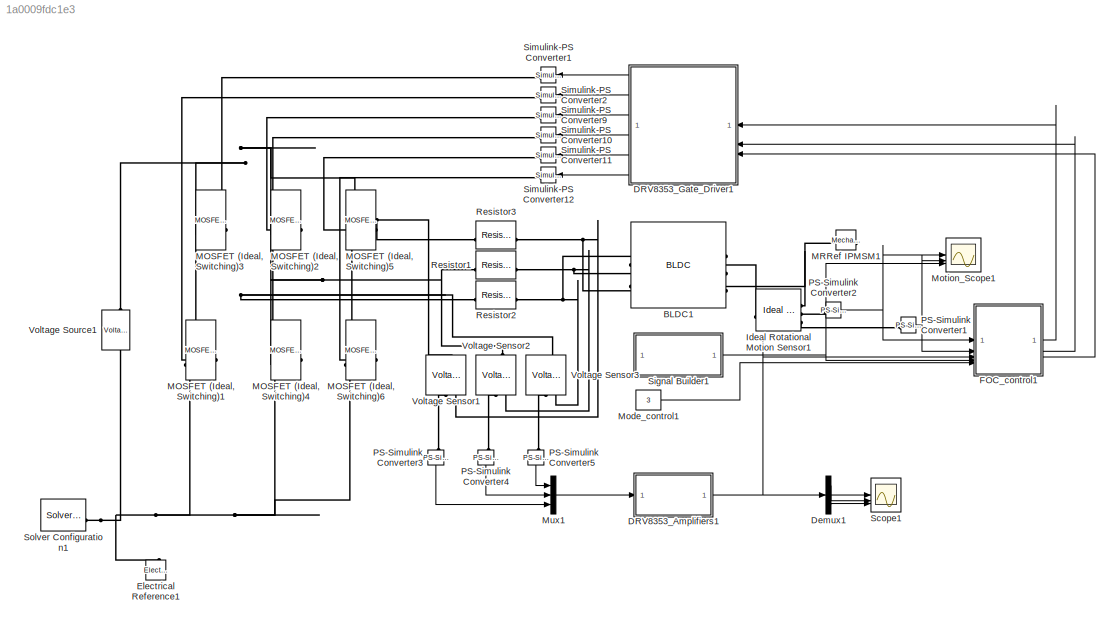
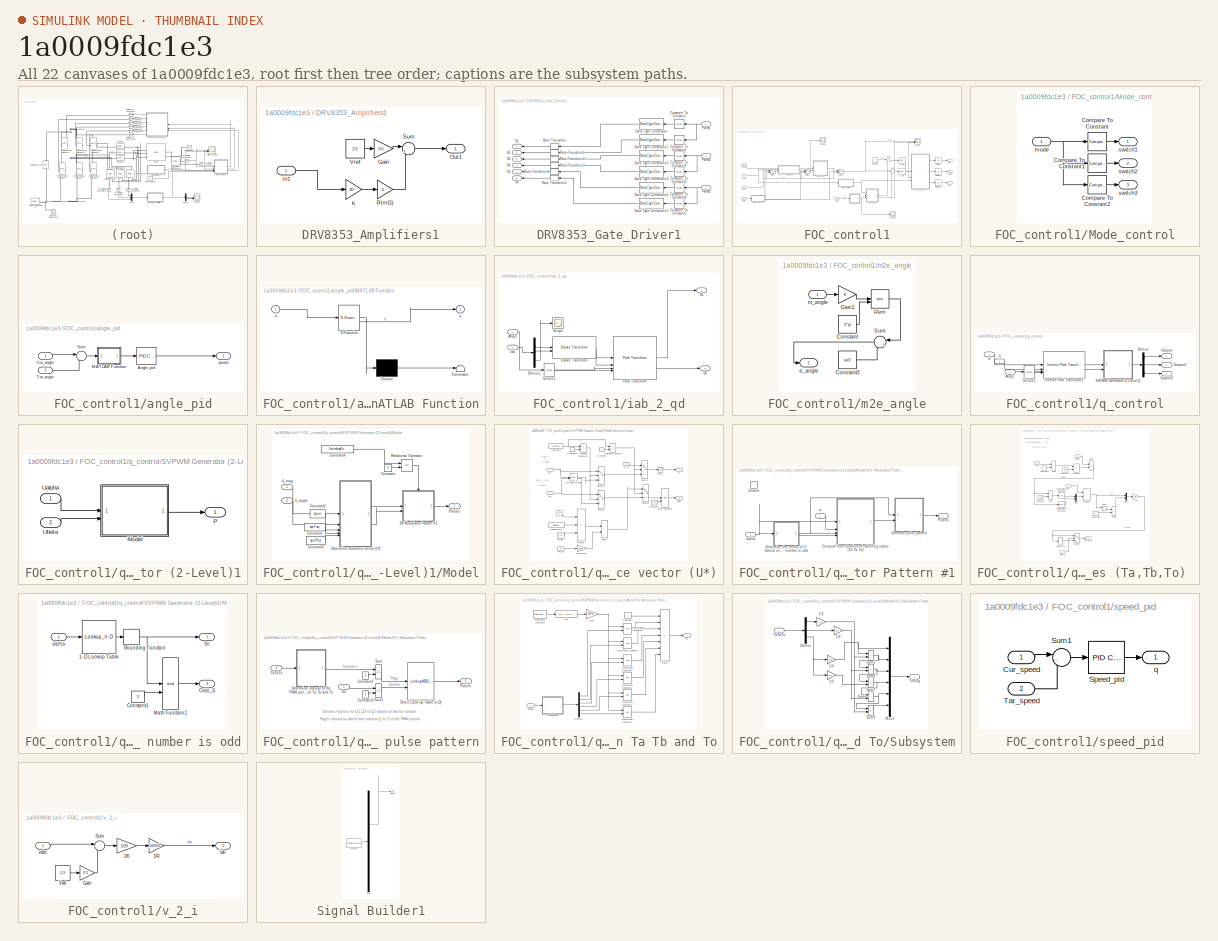
[diagram: thumbnail index - all 22 canvases of the model, root first then tree order]
MODEL slx_1a0009fdc1e3
KIND model
CONFIG AbsTol = auto
CONFIG EnableMultiTasking = off
CONFIG FixedStep = 0.0001
CONFIG MaxStep = auto
CONFIG MinStep = auto
CONFIG PreLoadFcn = ee_bldc_hysteresis_current_control_data;
CONFIG RelTol = 1e-3
CONFIG SampleTimeConstraint = Unconstrained
CONFIG SolverName = FixedStepAuto
CONFIG StartTime = 0.0
CONFIG StopFcn = ee_addSimlogTimeStamp(bdroot)
CONFIG StopTime = 10
BLOCK [Reference] BLDC1  REF=ee_lib/Electromechanical/Permanent Magnet/BLDC
  SourceBlock = ee_lib/Electromechanical/Permanent Magnet/BLDC
  SourceType = BLDC
BLOCK [SubSystem] DRV8353_Amplifiers1
BLOCK [Gain] DRV8353_Amplifiers1/Gain
  Gain = 0.5
BLOCK [Inport] DRV8353_Amplifiers1/In1
BLOCK [Gain] DRV8353_Amplifiers1/K
  Gain = 20
BLOCK [Outport] DRV8353_Amplifiers1/Out1
BLOCK [Gain] DRV8353_Amplifiers1/R(mΩ)
  Gain = 5
BLOCK [Sum] DRV8353_Amplifiers1/Sum
  Inputs = |+-
BLOCK [Constant] DRV8353_Amplifiers1/Vref
  Value = 2.5
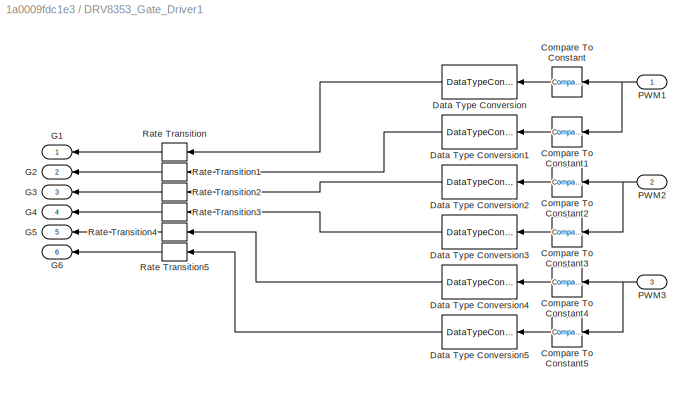
BLOCK [SubSystem] DRV8353_Gate_Driver1
BLOCK [Reference] DRV8353_Gate_Driver1/Compare To Constant  REF=simulink/Logic and Bit
Operations/Compare
To Constant
  SourceBlock = simulink/Logic and Bit\nOperations/Compare\nTo Constant
  SourceType = Compare To Constant
BLOCK [Reference] DRV8353_Gate_Driver1/Compare To Constant1  REF=simulink/Logic and Bit
Operations/Compare
To Constant
  SourceBlock = simulink/Logic and Bit\nOperations/Compare\nTo Constant
  SourceType = Compare To Constant
BLOCK [Reference] DRV8353_Gate_Driver1/Compare To Constant2  REF=simulink/Logic and Bit
Operations/Compare
To Constant
  SourceBlock = simulink/Logic and Bit\nOperations/Compare\nTo Constant
  SourceType = Compare To Constant
BLOCK [Reference] DRV8353_Gate_Driver1/Compare To Constant3  REF=simulink/Logic and Bit
Operations/Compare
To Constant
  SourceBlock = simulink/Logic and Bit\nOperations/Compare\nTo Constant
  SourceType = Compare To Constant
BLOCK [Reference] DRV8353_Gate_Driver1/Compare To Constant4  REF=simulink/Logic and Bit
Operations/Compare
To Constant
  SourceBlock = simulink/Logic and Bit\nOperations/Compare\nTo Constant
  SourceType = Compare To Constant
BLOCK [Reference] DRV8353_Gate_Driver1/Compare To Constant5  REF=simulink/Logic and Bit
Operations/Compare
To Constant
  SourceBlock = simulink/Logic and Bit\nOperations/Compare\nTo Constant
  SourceType = Compare To Constant
BLOCK [DataTypeConversion] DRV8353_Gate_Driver1/Data Type Conversion
  RndMeth = Floor
  SaturateOnIntegerOverflow = off
BLOCK [DataTypeConversion] DRV8353_Gate_Driver1/Data Type Conversion1
  RndMeth = Floor
  SaturateOnIntegerOverflow = off
BLOCK [DataTypeConversion] DRV8353_Gate_Driver1/Data Type Conversion2
  RndMeth = Floor
  SaturateOnIntegerOverflow = off
BLOCK [DataTypeConversion] DRV8353_Gate_Driver1/Data Type Conversion3
  RndMeth = Floor
  SaturateOnIntegerOverflow = off
BLOCK [DataTypeConversion] DRV8353_Gate_Driver1/Data Type Conversion4
  RndMeth = Floor
  SaturateOnIntegerOverflow = off
BLOCK [DataTypeConversion] DRV8353_Gate_Driver1/Data Type Conversion5
  RndMeth = Floor
  SaturateOnIntegerOverflow = off
BLOCK [Outport] DRV8353_Gate_Driver1/G1
BLOCK [Outport] DRV8353_Gate_Driver1/G2
  Port = 2
BLOCK [Outport] DRV8353_Gate_Driver1/G3
  Port = 3
BLOCK [Outport] DRV8353_Gate_Driver1/G4
  Port = 4
BLOCK [Outport] DRV8353_Gate_Driver1/G5
  Port = 5
BLOCK [Outport] DRV8353_Gate_Driver1/G6
  Port = 6
BLOCK [Inport] DRV8353_Gate_Driver1/PWM1
BLOCK [Inport] DRV8353_Gate_Driver1/PWM2
  Port = 2
BLOCK [Inport] DRV8353_Gate_Driver1/PWM3
  Port = 3
BLOCK [RateTransition] DRV8353_Gate_Driver1/Rate Transition
BLOCK [RateTransition] DRV8353_Gate_Driver1/Rate Transition1
BLOCK [RateTransition] DRV8353_Gate_Driver1/Rate Transition2
BLOCK [RateTransition] DRV8353_Gate_Driver1/Rate Transition3
BLOCK [RateTransition] DRV8353_Gate_Driver1/Rate Transition4
BLOCK [RateTransition] DRV8353_Gate_Driver1/Rate Transition5
BLOCK [Demux] Demux1
  Outputs = 3
BLOCK [Reference] Electrical Reference1  REF=fl_lib/Electrical/Electrical Elements/Electrical Reference
  NameLocation = right
  SourceBlock = fl_lib/Electrical/Electrical Elements/Electrical Reference
  SourceType = Electrical Reference
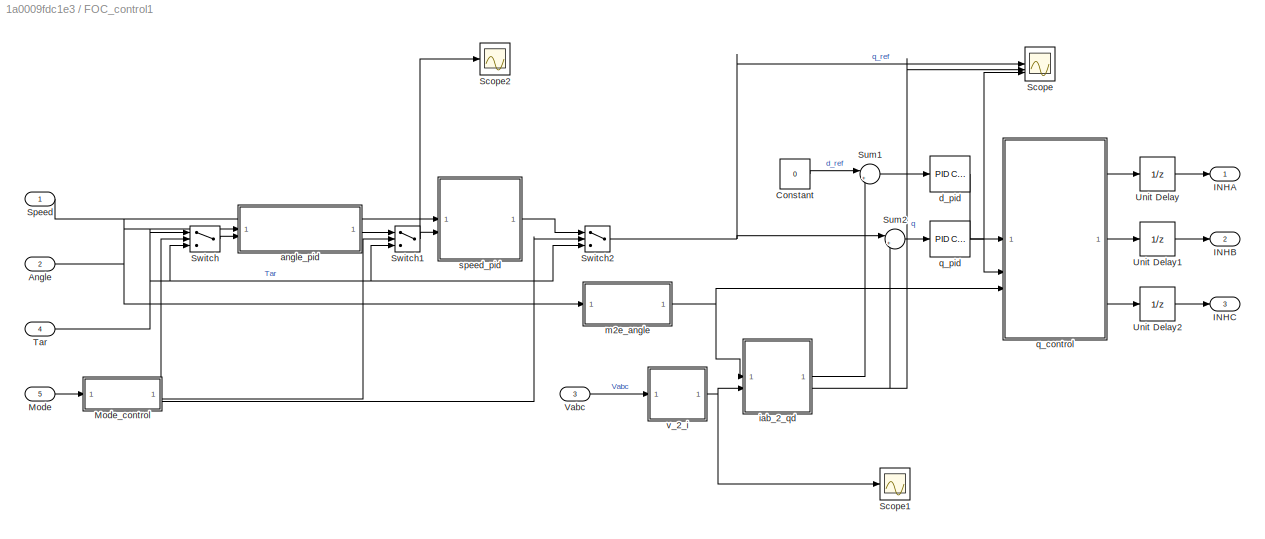
BLOCK [SubSystem] FOC_control1
BLOCK [Inport] FOC_control1/Angle
  Port = 2
BLOCK [Constant] FOC_control1/Constant
  Value = 0
BLOCK [Outport] FOC_control1/INHA
BLOCK [Outport] FOC_control1/INHB
  Port = 2
BLOCK [Outport] FOC_control1/INHC
  Port = 3
BLOCK [Inport] FOC_control1/Mode
  Port = 5
BLOCK [SubSystem] FOC_control1/Mode_control
BLOCK [Reference] FOC_control1/Mode_control/Compare To Constant  REF=simulink/Logic and Bit
Operations/Compare
To Constant
  SourceBlock = simulink/Logic and Bit\nOperations/Compare\nTo Constant
  SourceType = Compare To Constant
BLOCK [Reference] FOC_control1/Mode_control/Compare To Constant1  REF=simulink/Logic and Bit
Operations/Compare
To Constant
  SourceBlock = simulink/Logic and Bit\nOperations/Compare\nTo Constant
  SourceType = Compare To Constant
BLOCK [Reference] FOC_control1/Mode_control/Compare To Constant2  REF=simulink/Logic and Bit
Operations/Compare
To Constant
  SourceBlock = simulink/Logic and Bit\nOperations/Compare\nTo Constant
  SourceType = Compare To Constant
BLOCK [Inport] FOC_control1/Mode_control/mode
BLOCK [Outport] FOC_control1/Mode_control/switch1
BLOCK [Outport] FOC_control1/Mode_control/switch2
  Port = 2
BLOCK [Outport] FOC_control1/Mode_control/switch3
  Port = 3
BLOCK [Scope] FOC_control1/Scope
  Floating = off
  NumInputPorts = 3
  ScopeSpecificationString = Simulink.scopes.TimeScopeBlockCfg('CurrentConfiguration', extmgr.ConfigurationSet(extmgr.Configuration('Core','General UI',true),extmgr.Configuration('Core','Source UI',true),extmgr.Configuration('Sources','WiredSimulink',true,'DataLoggingVariableName','ScopeData6'),extmgr.Configuration('Visuals','Time Domain',true,'SerializedDisplays',{struct('MinYLimReal','-0.74375','MaxYLimReal','6.69375','YLab...<+2840ch>
BLOCK [Scope] FOC_control1/Scope1
  Floating = off
  NumInputPorts = 1
  ScopeSpecificationString = Simulink.scopes.TimeScopeBlockCfg('CurrentConfiguration', extmgr.ConfigurationSet(extmgr.Configuration('Core','General UI',true),extmgr.Configuration('Core','Source UI',true),extmgr.Configuration('Sources','WiredSimulink',true,'DataLoggingVariableName','ScopeData11'),extmgr.Configuration('Visuals','Time Domain',true,'SerializedDisplays',{struct('MinYLimReal','-4.30626','MaxYLimReal','4.37058','YLa...<+1460ch>
BLOCK [Scope] FOC_control1/Scope2
  Floating = off
  NumInputPorts = 1
  ScopeSpecificationString = Simulink.scopes.TimeScopeBlockCfg('CurrentConfiguration', extmgr.ConfigurationSet(extmgr.Configuration('Core','General UI',true),extmgr.Configuration('Core','Source UI',true),extmgr.Configuration('Sources','WiredSimulink',true),extmgr.Configuration('Visuals','Time Domain',true,'SerializedDisplays',{struct('MinYLimReal','-3.45289','MaxYLimReal','4.44116','YLabelReal','','MinYLimMag','0.00000','MaxY...<+1356ch>
BLOCK [Inport] FOC_control1/Speed
BLOCK [Sum] FOC_control1/Sum1
  Inputs = |+-
BLOCK [Sum] FOC_control1/Sum2
  Inputs = |+-
BLOCK [Switch] FOC_control1/Switch
  Criteria = u2 > Threshold
  InputSameDT = off
  SaturateOnIntegerOverflow = off
BLOCK [Switch] FOC_control1/Switch1
  Criteria = u2 > Threshold
  InputSameDT = off
  SaturateOnIntegerOverflow = off
BLOCK [Switch] FOC_control1/Switch2
  Criteria = u2 > Threshold
  InputSameDT = off
  SaturateOnIntegerOverflow = off
BLOCK [Inport] FOC_control1/Tar
  Port = 4
BLOCK [UnitDelay] FOC_control1/Unit Delay
  HasFrameUpgradeWarning = on
  SampleTime = -1
BLOCK [UnitDelay] FOC_control1/Unit Delay1
  HasFrameUpgradeWarning = on
  SampleTime = -1
BLOCK [UnitDelay] FOC_control1/Unit Delay2
  HasFrameUpgradeWarning = on
  SampleTime = -1
BLOCK [Inport] FOC_control1/Vabc
  Port = 3
BLOCK [SubSystem] FOC_control1/angle_pid
BLOCK [Reference] FOC_control1/angle_pid/Angle_pid  REF=slpidlib/PID Controller
  LibrarySourceBlock = simulink/Continuous/PID Controller
  SourceBlock = slpidlib/PID Controller
  SourceType = PID 1dof
BLOCK [Inport] FOC_control1/angle_pid/Cur_angle
BLOCK [SubSystem] FOC_control1/angle_pid/MATLAB Function
  ErrorFcn = Stateflow.Translate.translate
  LibrarySourceBlock = simulink/User-Defined\nFunctions/MATLAB Function
  PermitHierarchicalResolution = ExplicitOnly
  SFBlockType = MATLAB Function
  TreatAsAtomicUnit = on
BLOCK [Demux] FOC_control1/angle_pid/MATLAB Function/ Demux 
  Outputs = 1
BLOCK [S-Function] FOC_control1/angle_pid/MATLAB Function/ SFunction 
  EnableBusSupport = on
  FunctionName = sf_sfun
  PortCounts = [1 2]
  SFcnIsStateOwnerBlock = off
  SFunctionDeploymentMode = off
  Tag = Stateflow S-Function 1
BLOCK [Terminator] FOC_control1/angle_pid/MATLAB Function/ Terminator 
BLOCK [Inport] FOC_control1/angle_pid/MATLAB Function/u
BLOCK [Outport] FOC_control1/angle_pid/MATLAB Function/y
BLOCK [Sum] FOC_control1/angle_pid/Sum
  Inputs = |-+
BLOCK [Inport] FOC_control1/angle_pid/Tar_angle
  Port = 2
BLOCK [Outport] FOC_control1/angle_pid/speed
BLOCK [Reference] FOC_control1/d_pid  REF=slpidlib/PID Controller
  LibrarySourceBlock = simulink/Continuous/PID Controller
  SourceBlock = slpidlib/PID Controller
  SourceType = PID 1dof
BLOCK [SubSystem] FOC_control1/iab_2_qd
BLOCK [Inport] FOC_control1/iab_2_qd/Angle
BLOCK [Reference] FOC_control1/iab_2_qd/Clarke Transform  REF=mcbcontrolslib/Clarke Transform
  LibrarySourceBlock = mcbhdllib/Controls/Math Transforms/Clarke Transform
  SourceBlock = mcbcontrolslib/Clarke Transform
  SourceType = Clarke Transform
BLOCK [Demux] FOC_control1/iab_2_qd/Demux1
  Outputs = 3
BLOCK [Outport] FOC_control1/iab_2_qd/Ds
BLOCK [Reference] FOC_control1/iab_2_qd/Park Transform  REF=mcbcontrolslib/Park Transform
  LibrarySourceBlock = mcblib/Controls/Math Transforms/Park Transform
  SourceBlock = mcbcontrolslib/Park Transform
  SourceType = Park Transform
BLOCK [Outport] FOC_control1/iab_2_qd/Qs
  Port = 2
BLOCK [Scope] FOC_control1/iab_2_qd/Scope
  Floating = off
  NumInputPorts = 1
  ScopeSpecificationString = Simulink.scopes.TimeScopeBlockCfg('CurrentConfiguration', extmgr.ConfigurationSet(extmgr.Configuration('Core','General UI',true),extmgr.Configuration('Core','Source UI',true),extmgr.Configuration('Sources','WiredSimulink',true,'DataLoggingVariableName','ScopeData5'),extmgr.Configuration('Visuals','Time Domain',true),extmgr.Configuration('Tools','Plot Navigation',true),extmgr.Configuration('Tools',...<+40ch>
BLOCK [Trigonometry] FOC_control1/iab_2_qd/SinCos1
  Operator = sincos
BLOCK [Inport] FOC_control1/iab_2_qd/iab
  Port = 2
BLOCK [SubSystem] FOC_control1/m2e_angle
BLOCK [Constant] FOC_control1/m2e_angle/Constant
  Value = 2*pi
BLOCK [Constant] FOC_control1/m2e_angle/Constant3
  Value = -pi/2
BLOCK [Gain] FOC_control1/m2e_angle/Gain1
  Gain = 6
BLOCK [Math] FOC_control1/m2e_angle/Rem
  Operator = rem
BLOCK [Sum] FOC_control1/m2e_angle/Sum
  Inputs = |++
BLOCK [Outport] FOC_control1/m2e_angle/e_angle
BLOCK [Inport] FOC_control1/m2e_angle/m_angle
BLOCK [SubSystem] FOC_control1/q_control
BLOCK [Inport] FOC_control1/q_control/Angle
  Port = 3
BLOCK [Demux] FOC_control1/q_control/Demux
  Outputs = 3
BLOCK [Reference] FOC_control1/q_control/Inverse Park Transform1  REF=mcbcontrolslib/Inverse Park Transform
  LibrarySourceBlock = mcblib/Controls/Math Transforms/Inverse Park Transform
  SourceBlock = mcbcontrolslib/Inverse Park Transform
  SourceType = Inverse Park Transform
BLOCK [Outport] FOC_control1/q_control/Outport
BLOCK [Outport] FOC_control1/q_control/Outport1
  Port = 2
BLOCK [Outport] FOC_control1/q_control/Outport2
  Port = 3
BLOCK [SubSystem] FOC_control1/q_control/SVPWM Generator (2-Level)1
  AncestorBlock = sps_lib/Power Electronics/Power Electronics Control/SVPWM Generator\n(2-Level)
  CloseFcn = sps_rtmsupport('CloseFcn', gcbh);
  CopyFcn = sps_rtmsupport('CopyFcn', gcbh);
  DeleteFcn = sps_rtmsupport('DeleteFcn', gcbh);
  DialogController = POWERSYS.PowerSysDialog
  LibrarySourceBlock = sps_lib/Power Electronics/Power Electronics Control/SVPWM Generator\n(2-Level)
  LoadFcn = sps_rtmsupport('LoadFcn', gcbh);
  ModelCloseFcn = sps_rtmsupport('ModelCloseFcn', gcbh);
  NameChangeFcn = sps_rtmsupport('NameChangeFcn', gcbh);
  OpenFcn = sps_rtmsupport('OpenFcn', gcbh, [1  2]);
  PostSaveFcn = sps_rtmsupport('PostSaveFcn', gcbh);
  PreCopyFcn = sps_rtmsupport('PreCopyFcn', gcbh);
  PreDeleteFcn = sps_rtmsupport('PreDeleteFcn', gcbh);
  PreSaveFcn = sps_rtmsupport('PreSaveFcn', gcbh);
  StartFcn = sps_rtmsupport('StartFcn', gcbh);
  StopFcn = sps_rtmsupport('StopFcn', gcbh);
  UndoDeleteFcn = sps_rtmsupport('UndoDeleteFcn', gcbh);
BLOCK [SubSystem] FOC_control1/q_control/SVPWM Generator (2-Level)1/Model
  AncestorBlock = spsSVPWMGenerator2LevelModel/Continuous
  DialogController = POWERSYS.PowerSysDialog
  LibrarySourceBlock = spsSVPWMGenerator2LevelModel/Continuous
BLOCK [Constant] FOC_control1/q_control/SVPWM Generator (2-Level)1/Model/Constant
  SampleTime = Ts
BLOCK [Constant] FOC_control1/q_control/SVPWM Generator (2-Level)1/Model/Constant1
  NameLocation = top
  SampleTime = Ts
  Value = sps.Freq
BLOCK [Constant] FOC_control1/q_control/SVPWM Generator (2-Level)1/Model/Constant2
  NameLocation = top
  SampleTime = Ts
  Value = sps.m
BLOCK [Constant] FOC_control1/q_control/SVPWM Generator (2-Level)1/Model/Constant3
  NameLocation = top
  SampleTime = Ts
  Value = sps.Pha
BLOCK [Constant] FOC_control1/q_control/SVPWM Generator (2-Level)1/Model/Constant4
  SampleTime = Ts
  Value = SwitchingPattern
BLOCK [SubSystem] FOC_control1/q_control/SVPWM Generator (2-Level)1/Model/Determine reference vector (U*)
BLOCK [Saturate] FOC_control1/q_control/SVPWM Generator (2-Level)1/Model/Determine reference vector (U*)/0<m<1 
  LowerLimit = 0
  UpperLimit = 1
BLOCK [Reference] FOC_control1/q_control/SVPWM Generator (2-Level)1/Model/Determine reference vector (U*)/Cartesian to Polar  REF=simulink_extras/Transformations/Cartesian to
Polar
  SourceBlock = simulink_extras/Transformations/Cartesian to\nPolar
  SourceType = Cart2Polar
BLOCK [Constant] FOC_control1/q_control/SVPWM Generator (2-Level)1/Model/Determine reference vector (U*)/Constant
  SampleTime = Ts
  Value = 3
BLOCK [Constant] FOC_control1/q_control/SVPWM Generator (2-Level)1/Model/Determine reference vector (U*)/Constant1
  SampleTime = Ts
BLOCK [Constant] FOC_control1/q_control/SVPWM Generator (2-Level)1/Model/Determine reference vector (U*)/Constant2
  NameLocation = top
  SampleTime = Ts
  Value = 2*pi
BLOCK [Constant] FOC_control1/q_control/SVPWM Generator (2-Level)1/Model/Determine reference vector (U*)/Constant3
  SampleTime = Ts
  Value = InputType
BLOCK [Gain] FOC_control1/q_control/SVPWM Generator (2-Level)1/Model/Determine reference vector (U*)/Deg->Rad
  Gain = pi/180
  OutDataTypeStr = Inherit: Same as input
  ParamDataTypeStr = Inherit: Same as input
  SaturateOnIntegerOverflow = on
BLOCK [DigitalClock] FOC_control1/q_control/SVPWM Generator (2-Level)1/Model/Determine reference vector (U*)/Digital Clock
  SampleTime = Ts
BLOCK [Constant] FOC_control1/q_control/SVPWM Generator (2-Level)1/Model/Determine reference vector (U*)/Freq2
  SampleTime = Ts
  Value = 2*pi
BLOCK [Inport] FOC_control1/q_control/SVPWM Generator (2-Level)1/Model/Determine reference vector (U*)/Freq_Int
  Port = 4
BLOCK [Inport] FOC_control1/q_control/SVPWM Generator (2-Level)1/Model/Determine reference vector (U*)/In1
BLOCK [Inport] FOC_control1/q_control/SVPWM Generator (2-Level)1/Model/Determine reference vector (U*)/In2
  Port = 2
BLOCK [Math] FOC_control1/q_control/SVPWM Generator (2-Level)1/Model/Determine reference vector (U*)/Math Function2
  Operator = mod
  SignedPower = on
BLOCK [Inport] FOC_control1/q_control/SVPWM Generator (2-Level)1/Model/Determine reference vector (U*)/Pha_Init
  Port = 5
BLOCK [Product] FOC_control1/q_control/SVPWM Generator (2-Level)1/Model/Determine reference vector (U*)/Product
  InputSameDT = on
  Inputs = ***
  OutDataTypeStr = Inherit: Same as first input
  SaturateOnIntegerOverflow = on
BLOCK [RelationalOperator] FOC_control1/q_control/SVPWM Generator (2-Level)1/Model/Determine reference vector (U*)/Relational Operator
  InputSameDT = off
  Operator = ==
BLOCK [RelationalOperator] FOC_control1/q_control/SVPWM Generator (2-Level)1/Model/Determine reference vector (U*)/Relational Operator1
  InputSameDT = off
  Operator = ==
BLOCK [Sum] FOC_control1/q_control/SVPWM Generator (2-Level)1/Model/Determine reference vector (U*)/Sum1
  IconShape = rectangular
  InputSameDT = on
  OutDataTypeStr = Inherit: Same as first input
  SaturateOnIntegerOverflow = on
BLOCK [Switch] FOC_control1/q_control/SVPWM Generator (2-Level)1/Model/Determine reference vector (U*)/Switch
  InputSameDT = off
  Threshold = 0.5
BLOCK [Switch] FOC_control1/q_control/SVPWM Generator (2-Level)1/Model/Determine reference vector (U*)/Switch1
  InputSameDT = off
  Threshold = 0.5
BLOCK [Switch] FOC_control1/q_control/SVPWM Generator (2-Level)1/Model/Determine reference vector (U*)/Switch2
  InputSameDT = off
  Threshold = 0.5
BLOCK [Switch] FOC_control1/q_control/SVPWM Generator (2-Level)1/Model/Determine reference vector (U*)/Switch3
  InputSameDT = off
  Threshold = 0.5
BLOCK [Outport] FOC_control1/q_control/SVPWM Generator (2-Level)1/Model/Determine reference vector (U*)/alpha
  Port = 2
BLOCK [Outport] FOC_control1/q_control/SVPWM Generator (2-Level)1/Model/Determine reference vector (U*)/m
BLOCK [Inport] FOC_control1/q_control/SVPWM Generator (2-Level)1/Model/Determine reference vector (U*)/m_Int
  Port = 3
BLOCK [Outport] FOC_control1/q_control/SVPWM Generator (2-Level)1/Model/Pulses
BLOCK [RelationalOperator] FOC_control1/q_control/SVPWM Generator (2-Level)1/Model/Relational Operator
  InputSameDT = off
  Operator = ==
BLOCK [SubSystem] FOC_control1/q_control/SVPWM Generator (2-Level)1/Model/SV Modulator Pattern #1
BLOCK [SubSystem] FOC_control1/q_control/SVPWM Generator (2-Level)1/Model/SV Modulator Pattern #1/Compute time duration of switching states (Ta,Tb,To) 
BLOCK [Gain] FOC_control1/q_control/SVPWM Generator (2-Level)1/Model/SV Modulator Pattern #1/Compute time duration of switching states (Ta,Tb,To) /1//Fc
  Gain = 1/Fc
  OutDataTypeStr = Inherit: Same as input
  ParamDataTypeStr = Inherit: Same as input
  SaturateOnIntegerOverflow = on
BLOCK [Constant] FOC_control1/q_control/SVPWM Generator (2-Level)1/Model/SV Modulator Pattern #1/Compute time duration of switching states (Ta,Tb,To) /Constant
  SampleTime = Ts
  Value = pi/6
BLOCK [Constant] FOC_control1/q_control/SVPWM Generator (2-Level)1/Model/SV Modulator Pattern #1/Compute time duration of switching states (Ta,Tb,To) /Constant1
  SampleTime = Ts
  Value = pi/3
BLOCK [Constant] FOC_control1/q_control/SVPWM Generator (2-Level)1/Model/SV Modulator Pattern #1/Compute time duration of switching states (Ta,Tb,To) /Constant2
  SampleTime = Ts
BLOCK [Constant] FOC_control1/q_control/SVPWM Generator (2-Level)1/Model/SV Modulator Pattern #1/Compute time duration of switching states (Ta,Tb,To) /Constant8
  SampleTime = Ts
BLOCK [Mux] FOC_control1/q_control/SVPWM Generator (2-Level)1/Model/SV Modulator Pattern #1/Compute time duration of switching states (Ta,Tb,To) /Mux
  DisplayOption = bar
  Inputs = 2
BLOCK [Mux] FOC_control1/q_control/SVPWM Generator (2-Level)1/Model/SV Modulator Pattern #1/Compute time duration of switching states (Ta,Tb,To) /Mux1
  DisplayOption = bar
  Inputs = 2
BLOCK [Inport] FOC_control1/q_control/SVPWM Generator (2-Level)1/Model/SV Modulator Pattern #1/Compute time duration of switching states (Ta,Tb,To) /Odd_S
  Port = 4
BLOCK [Product] FOC_control1/q_control/SVPWM Generator (2-Level)1/Model/SV Modulator Pattern #1/Compute time duration of switching states (Ta,Tb,To) /Product
  OutDataTypeStr = Inherit: Same as first input
  SaturateOnIntegerOverflow = on
BLOCK [Product] FOC_control1/q_control/SVPWM Generator (2-Level)1/Model/SV Modulator Pattern #1/Compute time duration of switching states (Ta,Tb,To) /Product1
  OutDataTypeStr = Inherit: Same as first input
  SaturateOnIntegerOverflow = on
BLOCK [Selector] FOC_control1/q_control/SVPWM Generator (2-Level)1/Model/SV Modulator Pattern #1/Compute time duration of switching states (Ta,Tb,To) /Selector1
  IndexOptions = Index vector (dialog)
  Indices = [2 1 3]
  InputPortWidth = 3
  OutputSizes = 1
BLOCK [Inport] FOC_control1/q_control/SVPWM Generator (2-Level)1/Model/SV Modulator Pattern #1/Compute time duration of switching states (Ta,Tb,To) /Sn
  Port = 3
BLOCK [Sum] FOC_control1/q_control/SVPWM Generator (2-Level)1/Model/SV Modulator Pattern #1/Compute time duration of switching states (Ta,Tb,To) /Sum
  IconShape = rectangular
  SaturateOnIntegerOverflow = on
BLOCK [Sum] FOC_control1/q_control/SVPWM Generator (2-Level)1/Model/SV Modulator Pattern #1/Compute time duration of switching states (Ta,Tb,To) /Sum1
  IconShape = rectangular
  Inputs = +-
  SaturateOnIntegerOverflow = on
BLOCK [Sum] FOC_control1/q_control/SVPWM Generator (2-Level)1/Model/SV Modulator Pattern #1/Compute time duration of switching states (Ta,Tb,To) /Sum2
  IconShape = rectangular
  Inputs = 1
  SaturateOnIntegerOverflow = on
BLOCK [Sum] FOC_control1/q_control/SVPWM Generator (2-Level)1/Model/SV Modulator Pattern #1/Compute time duration of switching states (Ta,Tb,To) /Sum3
  IconShape = rectangular
  Inputs = -+
  SaturateOnIntegerOverflow = on
BLOCK [Sum] FOC_control1/q_control/SVPWM Generator (2-Level)1/Model/SV Modulator Pattern #1/Compute time duration of switching states (Ta,Tb,To) /Sum4
  IconShape = rectangular
  Inputs = +-
  SaturateOnIntegerOverflow = on
BLOCK [Switch] FOC_control1/q_control/SVPWM Generator (2-Level)1/Model/SV Modulator Pattern #1/Compute time duration of switching states (Ta,Tb,To) /Switch1
  InputSameDT = off
  Threshold = 0.5
BLOCK [Outport] FOC_control1/q_control/SVPWM Generator (2-Level)1/Model/SV Modulator Pattern #1/Compute time duration of switching states (Ta,Tb,To) /Ta_Tb_To
BLOCK [Trigonometry] FOC_control1/q_control/SVPWM Generator (2-Level)1/Model/SV Modulator Pattern #1/Compute time duration of switching states (Ta,Tb,To) /Trigonometric Function
BLOCK [Trigonometry] FOC_control1/q_control/SVPWM Generator (2-Level)1/Model/SV Modulator Pattern #1/Compute time duration of switching states (Ta,Tb,To) /Trigonometric Function1
  Operator = cos
BLOCK [Inport] FOC_control1/q_control/SVPWM Generator (2-Level)1/Model/SV Modulator Pattern #1/Compute time duration of switching states (Ta,Tb,To) /alpha
BLOCK [Inport] FOC_control1/q_control/SVPWM Generator (2-Level)1/Model/SV Modulator Pattern #1/Compute time duration of switching states (Ta,Tb,To) /m
  Port = 2
BLOCK [SubSystem] FOC_control1/q_control/SVPWM Generator (2-Level)1/Model/SV Modulator Pattern #1/Determine the sector of U* based on alpha (rad). Also, determine if the sector number is odd
BLOCK [Lookup_n-D] FOC_control1/q_control/SVPWM Generator (2-Level)1/Model/SV Modulator Pattern #1/Determine the sector of U* based on alpha (rad). Also, determine if the sector number is odd/1-D Lookup Table
  BeginIndexSearchUsingPreviousIndexResult = on
  BreakpointsForDimension1 = [0:pi/3:5*pi/3]
  InputPortMap = u0
  InternalRulePriority = Speed
  NumberOfTableDimensions = 1
  RndMeth = Simplest
  Table = [1:6]
BLOCK [Constant] FOC_control1/q_control/SVPWM Generator (2-Level)1/Model/SV Modulator Pattern #1/Determine the sector of U* based on alpha (rad). Also, determine if the sector number is odd/Constant1
  SampleTime = Ts
  Value = 2
BLOCK [Math] FOC_control1/q_control/SVPWM Generator (2-Level)1/Model/SV Modulator Pattern #1/Determine the sector of U* based on alpha (rad). Also, determine if the sector number is odd/Math Function1
  Operator = mod
  SignedPower = on
BLOCK [Outport] FOC_control1/q_control/SVPWM Generator (2-Level)1/Model/SV Modulator Pattern #1/Determine the sector of U* based on alpha (rad). Also, determine if the sector number is odd/Odd_S
  Port = 2
BLOCK [Rounding] FOC_control1/q_control/SVPWM Generator (2-Level)1/Model/SV Modulator Pattern #1/Determine the sector of U* based on alpha (rad). Also, determine if the sector number is odd/Rounding Function
BLOCK [Outport] FOC_control1/q_control/SVPWM Generator (2-Level)1/Model/SV Modulator Pattern #1/Determine the sector of U* based on alpha (rad). Also, determine if the sector number is odd/Sn
BLOCK [Inport] FOC_control1/q_control/SVPWM Generator (2-Level)1/Model/SV Modulator Pattern #1/Determine the sector of U* based on alpha (rad). Also, determine if the sector number is odd/alpha
BLOCK [EnablePort] FOC_control1/q_control/SVPWM Generator (2-Level)1/Model/SV Modulator Pattern #1/Enable
  PropagateVarSize = During execution
BLOCK [SubSystem] FOC_control1/q_control/SVPWM Generator (2-Level)1/Model/SV Modulator Pattern #1/Generate pulse pattern
BLOCK [Constant] FOC_control1/q_control/SVPWM Generator (2-Level)1/Model/SV Modulator Pattern #1/Generate pulse pattern/Constant2
  SampleTime = Ts
BLOCK [Constant] FOC_control1/q_control/SVPWM Generator (2-Level)1/Model/SV Modulator Pattern #1/Generate pulse pattern/Constant3
  SampleTime = Ts
BLOCK [SubSystem] FOC_control1/q_control/SVPWM Generator (2-Level)1/Model/SV Modulator Pattern #1/Generate pulse pattern/Determine interval of the PWM period based on Ta Tb and To
BLOCK [Constant] FOC_control1/q_control/SVPWM Generator (2-Level)1/Model/SV Modulator Pattern #1/Generate pulse pattern/Determine interval of the PWM period based on Ta Tb and To/Constant7
  SampleTime = Ts
BLOCK [Demux] FOC_control1/q_control/SVPWM Generator (2-Level)1/Model/SV Modulator Pattern #1/Generate pulse pattern/Determine interval of the PWM period based on Ta Tb and To/Demux1
  DisplayOption = none
  Outputs = 6
BLOCK [Fcn] FOC_control1/q_control/SVPWM Generator (2-Level)1/Model/SV Modulator Pattern #1/Generate pulse pattern/Determine interval of the PWM period based on Ta Tb and To/Fcn
  Expr = 0.5 * ( u(1)+1 )
BLOCK [Gain] FOC_control1/q_control/SVPWM Generator (2-Level)1/Model/SV Modulator Pattern #1/Generate pulse pattern/Determine interval of the PWM period based on Ta Tb and To/Gain
  Gain = 1/Fc
BLOCK [RelationalOperator] FOC_control1/q_control/SVPWM Generator (2-Level)1/Model/SV Modulator Pattern #1/Generate pulse pattern/Determine interval of the PWM period based on Ta Tb and To/Relational Operator
  InputSameDT = off
BLOCK [RelationalOperator] FOC_control1/q_control/SVPWM Generator (2-Level)1/Model/SV Modulator Pattern #1/Generate pulse pattern/Determine interval of the PWM period based on Ta Tb and To/Relational Operator1
  InputSameDT = off
BLOCK [RelationalOperator] FOC_control1/q_control/SVPWM Generator (2-Level)1/Model/SV Modulator Pattern #1/Generate pulse pattern/Determine interval of the PWM period based on Ta Tb and To/Relational Operator2
  InputSameDT = off
BLOCK [RelationalOperator] FOC_control1/q_control/SVPWM Generator (2-Level)1/Model/SV Modulator Pattern #1/Generate pulse pattern/Determine interval of the PWM period based on Ta Tb and To/Relational Operator3
  InputSameDT = off
BLOCK [RelationalOperator] FOC_control1/q_control/SVPWM Generator (2-Level)1/Model/SV Modulator Pattern #1/Generate pulse pattern/Determine interval of the PWM period based on Ta Tb and To/Relational Operator4
  InputSameDT = off
BLOCK [RelationalOperator] FOC_control1/q_control/SVPWM Generator (2-Level)1/Model/SV Modulator Pattern #1/Generate pulse pattern/Determine interval of the PWM period based on Ta Tb and To/Relational Operator5
  InputSameDT = off
BLOCK [Reference] FOC_control1/q_control/SVPWM Generator (2-Level)1/Model/SV Modulator Pattern #1/Generate pulse pattern/Determine interval of the PWM period based on Ta Tb and To/Sawtooth Generator  REF=spsSawtoothGeneratorLib/Sawtooth
Generator
  LibrarySourceBlock = sps_lib/Sources/Signal Generator Sources/Sawtooth\nGenerator
  SourceBlock = spsSawtoothGeneratorLib/Sawtooth\nGenerator
  SourceType = Sawtooth Generator
BLOCK [SubSystem] FOC_control1/q_control/SVPWM Generator (2-Level)1/Model/SV Modulator Pattern #1/Generate pulse pattern/Determine interval of the PWM period based on Ta Tb and To/Subsystem
BLOCK [Gain] FOC_control1/q_control/SVPWM Generator (2-Level)1/Model/SV Modulator Pattern #1/Generate pulse pattern/Determine interval of the PWM period based on Ta Tb and To/Subsystem/  1//2
  Gain = 0.5
  OutDataTypeStr = Inherit: Same as input
  ParamDataTypeStr = Inherit: Same as input
  SaturateOnIntegerOverflow = on
BLOCK [Gain] FOC_control1/q_control/SVPWM Generator (2-Level)1/Model/SV Modulator Pattern #1/Generate pulse pattern/Determine interval of the PWM period based on Ta Tb and To/Subsystem/ 1//2
  Gain = 0.5
  OutDataTypeStr = Inherit: Same as input
  ParamDataTypeStr = Inherit: Same as input
  SaturateOnIntegerOverflow = on
BLOCK [Gain] FOC_control1/q_control/SVPWM Generator (2-Level)1/Model/SV Modulator Pattern #1/Generate pulse pattern/Determine interval of the PWM period based on Ta Tb and To/Subsystem/ 1//2 
  Gain = 0.5
  NameLocation = top
  OutDataTypeStr = Inherit: Same as input
  ParamDataTypeStr = Inherit: Same as input
  SaturateOnIntegerOverflow = on
BLOCK [Gain] FOC_control1/q_control/SVPWM Generator (2-Level)1/Model/SV Modulator Pattern #1/Generate pulse pattern/Determine interval of the PWM period based on Ta Tb and To/Subsystem/1//4
  Gain = 0.25
  OutDataTypeStr = Inherit: Same as input
  ParamDataTypeStr = Inherit: Same as input
  SaturateOnIntegerOverflow = on
BLOCK [Demux] FOC_control1/q_control/SVPWM Generator (2-Level)1/Model/SV Modulator Pattern #1/Generate pulse pattern/Determine interval of the PWM period based on Ta Tb and To/Subsystem/Demux
  DisplayOption = none
  Outputs = 3
BLOCK [Mux] FOC_control1/q_control/SVPWM Generator (2-Level)1/Model/SV Modulator Pattern #1/Generate pulse pattern/Determine interval of the PWM period based on Ta Tb and To/Subsystem/Mux1
  DisplayOption = bar
  Inputs = 6
BLOCK [Sum] FOC_control1/q_control/SVPWM Generator (2-Level)1/Model/SV Modulator Pattern #1/Generate pulse pattern/Determine interval of the PWM period based on Ta Tb and To/Subsystem/Sum5
  IconShape = rectangular
  SaturateOnIntegerOverflow = on
BLOCK [Sum] FOC_control1/q_control/SVPWM Generator (2-Level)1/Model/SV Modulator Pattern #1/Generate pulse pattern/Determine interval of the PWM period based on Ta Tb and To/Subsystem/Sum6
  IconShape = rectangular
  SaturateOnIntegerOverflow = on
BLOCK [Sum] FOC_control1/q_control/SVPWM Generator (2-Level)1/Model/SV Modulator Pattern #1/Generate pulse pattern/Determine interval of the PWM period based on Ta Tb and To/Subsystem/Sum7
  IconShape = rectangular
  SaturateOnIntegerOverflow = on
BLOCK [Sum] FOC_control1/q_control/SVPWM Generator (2-Level)1/Model/SV Modulator Pattern #1/Generate pulse pattern/Determine interval of the PWM period based on Ta Tb and To/Subsystem/Sum8
  IconShape = rectangular
  SaturateOnIntegerOverflow = on
BLOCK [Sum] FOC_control1/q_control/SVPWM Generator (2-Level)1/Model/SV Modulator Pattern #1/Generate pulse pattern/Determine interval of the PWM period based on Ta Tb and To/Subsystem/Sum9
  IconShape = rectangular
  SaturateOnIntegerOverflow = on
BLOCK [Inport] FOC_control1/q_control/SVPWM Generator (2-Level)1/Model/SV Modulator Pattern #1/Generate pulse pattern/Determine interval of the PWM period based on Ta Tb and To/Subsystem/TaTbTo
BLOCK [Outport] FOC_control1/q_control/SVPWM Generator (2-Level)1/Model/SV Modulator Pattern #1/Generate pulse pattern/Determine interval of the PWM period based on Ta Tb and To/Subsystem/Timing
BLOCK [Sum] FOC_control1/q_control/SVPWM Generator (2-Level)1/Model/SV Modulator Pattern #1/Generate pulse pattern/Determine interval of the PWM period based on Ta Tb and To/Sum1
  IconShape = rectangular
  Inputs = +++++++
  SaturateOnIntegerOverflow = on
BLOCK [Inport] FOC_control1/q_control/SVPWM Generator (2-Level)1/Model/SV Modulator Pattern #1/Generate pulse pattern/Determine interval of the PWM period based on Ta Tb and To/TaTbTo
BLOCK [Outport] FOC_control1/q_control/SVPWM Generator (2-Level)1/Model/SV Modulator Pattern #1/Generate pulse pattern/Determine interval of the PWM period based on Ta Tb and To/Tn
BLOCK [LookupNDDirect] FOC_control1/q_control/SVPWM Generator (2-Level)1/Model/SV Modulator Pattern #1/Generate pulse pattern/Direct Look-Up Table (n-D)
  InputsSelectThisObjectFromTable = Vector
  NumberOfTableDimensions = 3
  Table = pat1
BLOCK [Outport] FOC_control1/q_control/SVPWM Generator (2-Level)1/Model/SV Modulator Pattern #1/Generate pulse pattern/Pulses
BLOCK [Inport] FOC_control1/q_control/SVPWM Generator (2-Level)1/Model/SV Modulator Pattern #1/Generate pulse pattern/Sn
BLOCK [Sum] FOC_control1/q_control/SVPWM Generator (2-Level)1/Model/SV Modulator Pattern #1/Generate pulse pattern/Sum
  IconShape = rectangular
  Inputs = +-
  SaturateOnIntegerOverflow = on
BLOCK [Sum] FOC_control1/q_control/SVPWM Generator (2-Level)1/Model/SV Modulator Pattern #1/Generate pulse pattern/Sum1
  IconShape = rectangular
  Inputs = +-
  SaturateOnIntegerOverflow = on
BLOCK [Inport] FOC_control1/q_control/SVPWM Generator (2-Level)1/Model/SV Modulator Pattern #1/Generate pulse pattern/TaTbTo
  Port = 2
BLOCK [Outport] FOC_control1/q_control/SVPWM Generator (2-Level)1/Model/SV Modulator Pattern #1/Pulses
BLOCK [Inport] FOC_control1/q_control/SVPWM Generator (2-Level)1/Model/SV Modulator Pattern #1/alpha
  Port = 2
BLOCK [Inport] FOC_control1/q_control/SVPWM Generator (2-Level)1/Model/SV Modulator Pattern #1/m
BLOCK [Inport] FOC_control1/q_control/SVPWM Generator (2-Level)1/Model/U_angle
  Port = 2
BLOCK [Inport] FOC_control1/q_control/SVPWM Generator (2-Level)1/Model/U_mag
BLOCK [Outport] FOC_control1/q_control/SVPWM Generator (2-Level)1/P
  SampleTime = Ts
  VectorParamsAs1DForOutWhenUnconnected = off
BLOCK [Inport] FOC_control1/q_control/SVPWM Generator (2-Level)1/Ualpha
  SampleTime = Ts
BLOCK [Inport] FOC_control1/q_control/SVPWM Generator (2-Level)1/Ubeta
  Port = 2
  SampleTime = Ts
BLOCK [Trigonometry] FOC_control1/q_control/SinCos1
  Operator = sincos
BLOCK [Inport] FOC_control1/q_control/d
BLOCK [Inport] FOC_control1/q_control/q
  Port = 2
BLOCK [Reference] FOC_control1/q_pid  REF=slpidlib/PID Controller
  LibrarySourceBlock = simulink/Continuous/PID Controller
  SourceBlock = slpidlib/PID Controller
  SourceType = PID 1dof
BLOCK [SubSystem] FOC_control1/speed_pid
BLOCK [Inport] FOC_control1/speed_pid/Cur_speed
BLOCK [Reference] FOC_control1/speed_pid/Speed_pid  REF=slpidlib/PID Controller
  LibrarySourceBlock = simulink/Continuous/PID Controller
  SourceBlock = slpidlib/PID Controller
  SourceType = PID 1dof
BLOCK [Sum] FOC_control1/speed_pid/Sum1
  Inputs = |-+
BLOCK [Inport] FOC_control1/speed_pid/Tar_speed
  Port = 2
BLOCK [Outport] FOC_control1/speed_pid/q
BLOCK [SubSystem] FOC_control1/v_2_i
BLOCK [Gain] FOC_control1/v_2_i/1//K
  Gain = 1/20
BLOCK [Gain] FOC_control1/v_2_i/1//R
  Gain = 1000/5
BLOCK [Gain] FOC_control1/v_2_i/Gain
  Gain = 0.5
BLOCK [Sum] FOC_control1/v_2_i/Sum
  Inputs = |-+
BLOCK [Constant] FOC_control1/v_2_i/Vref
  Value = 2.5
BLOCK [Outport] FOC_control1/v_2_i/iab
BLOCK [Inport] FOC_control1/v_2_i/vabc
BLOCK [Reference] Ideal Rotational Motion Sensor1  REF=fl_lib/Mechanical/Mechanical Sensors/Ideal Rotational
Motion Sensor
  SourceBlock = fl_lib/Mechanical/Mechanical Sensors/Ideal Rotational\nMotion Sensor
  SourceType = Ideal Rotational\nMotion Sensor
BLOCK [Reference] MOSFET (Ideal, Switching)1  REF=ee_lib/Semiconductors &
Converters/MOSFET
(Ideal,
Switching)
  SourceBlock = ee_lib/Semiconductors &\nConverters/MOSFET\n(Ideal,\nSwitching)
  SourceType = MOSFET\n(Ideal,\nSwitching)
BLOCK [Reference] MOSFET (Ideal, Switching)2  REF=ee_lib/Semiconductors &
Converters/MOSFET
(Ideal,
Switching)
  SourceBlock = ee_lib/Semiconductors &\nConverters/MOSFET\n(Ideal,\nSwitching)
  SourceType = MOSFET\n(Ideal,\nSwitching)
BLOCK [Reference] MOSFET (Ideal, Switching)3  REF=ee_lib/Semiconductors &
Converters/MOSFET
(Ideal,
Switching)
  SourceBlock = ee_lib/Semiconductors &\nConverters/MOSFET\n(Ideal,\nSwitching)
  SourceType = MOSFET\n(Ideal,\nSwitching)
BLOCK [Reference] MOSFET (Ideal, Switching)4  REF=ee_lib/Semiconductors &
Converters/MOSFET
(Ideal,
Switching)
  SourceBlock = ee_lib/Semiconductors &\nConverters/MOSFET\n(Ideal,\nSwitching)
  SourceType = MOSFET\n(Ideal,\nSwitching)
BLOCK [Reference] MOSFET (Ideal, Switching)5  REF=ee_lib/Semiconductors &
Converters/MOSFET
(Ideal,
Switching)
  SourceBlock = ee_lib/Semiconductors &\nConverters/MOSFET\n(Ideal,\nSwitching)
  SourceType = MOSFET\n(Ideal,\nSwitching)
BLOCK [Reference] MOSFET (Ideal, Switching)6  REF=ee_lib/Semiconductors &
Converters/MOSFET
(Ideal,
Switching)
  SourceBlock = ee_lib/Semiconductors &\nConverters/MOSFET\n(Ideal,\nSwitching)
  SourceType = MOSFET\n(Ideal,\nSwitching)
BLOCK [Reference] MRRef IPMSM1  REF=fl_lib/Mechanical/Rotational Elements/Mechanical
Rotational Reference
  NameLocation = top
  SourceBlock = fl_lib/Mechanical/Rotational Elements/Mechanical\nRotational Reference
  SourceType = Mechanical\nRotational Reference
BLOCK [Constant] Mode_control1
  Value = 3
BLOCK [Scope] Motion_Scope1
  Floating = off
  NumInputPorts = 3
  ScopeSpecificationString = Simulink.scopes.TimeScopeBlockCfg('CurrentConfiguration', extmgr.ConfigurationSet(extmgr.Configuration('Core','General UI',true),extmgr.Configuration('Core','Source UI',true),extmgr.Configuration('Sources','WiredSimulink',true,'DataLoggingVariableName','ScopeData1'),extmgr.Configuration('Visuals','Time Domain',true,'SerializedDisplays',{struct('MinYLimReal','-0.74146','MaxYLimReal','6.67314','YLab...<+2855ch>
BLOCK [Mux] Mux1
  DisplayOption = bar
  Inputs = 3
BLOCK [Reference] PS-Simulink Converter1  REF=nesl_utility/PS-Simulink
Converter
  SourceBlock = nesl_utility/PS-Simulink\nConverter
  SourceType = PS-Simulink\nConverter
BLOCK [Reference] PS-Simulink Converter2  REF=nesl_utility/PS-Simulink
Converter
  SourceBlock = nesl_utility/PS-Simulink\nConverter
  SourceType = PS-Simulink\nConverter
BLOCK [Reference] PS-Simulink Converter3  REF=nesl_utility/PS-Simulink
Converter
  NameLocation = left
  SourceBlock = nesl_utility/PS-Simulink\nConverter
  SourceType = PS-Simulink\nConverter
BLOCK [Reference] PS-Simulink Converter4  REF=nesl_utility/PS-Simulink
Converter
  NameLocation = left
  SourceBlock = nesl_utility/PS-Simulink\nConverter
  SourceType = PS-Simulink\nConverter
BLOCK [Reference] PS-Simulink Converter5  REF=nesl_utility/PS-Simulink
Converter
  NameLocation = left
  SourceBlock = nesl_utility/PS-Simulink\nConverter
  SourceType = PS-Simulink\nConverter
BLOCK [Reference] Resistor1  REF=fl_lib/Electrical/Electrical Elements/Resistor
  SourceBlock = fl_lib/Electrical/Electrical Elements/Resistor
  SourceType = Resistor
BLOCK [Reference] Resistor2  REF=fl_lib/Electrical/Electrical Elements/Resistor
  SourceBlock = fl_lib/Electrical/Electrical Elements/Resistor
  SourceType = Resistor
BLOCK [Reference] Resistor3  REF=fl_lib/Electrical/Electrical Elements/Resistor
  SourceBlock = fl_lib/Electrical/Electrical Elements/Resistor
  SourceType = Resistor
BLOCK [Scope] Scope1
  Floating = off
  NumInputPorts = 3
  ScopeSpecificationString = Simulink.scopes.TimeScopeBlockCfg('CurrentConfiguration', extmgr.ConfigurationSet(extmgr.Configuration('Core','General UI',true),extmgr.Configuration('Core','Source UI',true),extmgr.Configuration('Sources','WiredSimulink',true,'DataLoggingVariableName','ScopeData2'),extmgr.Configuration('Visuals','Time Domain',true,'SerializedDisplays',{struct('MinYLimReal','0.79653','MaxYLimReal','1.71121','YLabe...<+1487ch>
BLOCK [SubSystem] Signal Builder1
  ClipboardFcn = sigbuilder_block('clipboard');
  CloseFcn = sigbuilder_block('close');
  ContinueFcn = sigbuilder_block('continue');
  CopyFcn = sigbuilder_block('copy');
  DeleteFcn = sigbuilder_block('delete');
  LoadFcn = sigbuilder_block('load');
  MaskHideContents = on
  ModelCloseFcn = sigbuilder_block('modelClose');
  NameChangeFcn = sigbuilder_block('namechange');
  OpenFcn = sigbuilder_block('open',[437.6 199.2 550.4 400 ]);
  PauseFcn = sigbuilder_block('pause');
  PreSaveFcn = sigbuilder_block('preSave');
  StartFcn = sigbuilder_block('start');
  StopFcn = sigbuilder_block('stop');
  Tag = STV Subsys
BLOCK [Demux] Signal Builder1/Demux
  DisplayOption = none
  Outputs = 1
  Tag = STV Demux
BLOCK [FromWorkspace] Signal Builder1/FromWs
  Tag = STV FromWs
  VariableName = tuvar
BLOCK [Outport] Signal Builder1/Signal 1
  Tag = STV Outport
BLOCK [Reference] Simulink-PS Converter1  REF=nesl_utility/Simulink-PS
Converter
  SourceBlock = nesl_utility/Simulink-PS\nConverter
  SourceType = Simulink-PS\nConverter
BLOCK [Reference] Simulink-PS Converter10  REF=nesl_utility/Simulink-PS
Converter
  SourceBlock = nesl_utility/Simulink-PS\nConverter
  SourceType = Simulink-PS\nConverter
BLOCK [Reference] Simulink-PS Converter11  REF=nesl_utility/Simulink-PS
Converter
  SourceBlock = nesl_utility/Simulink-PS\nConverter
  SourceType = Simulink-PS\nConverter
BLOCK [Reference] Simulink-PS Converter12  REF=nesl_utility/Simulink-PS
Converter
  SourceBlock = nesl_utility/Simulink-PS\nConverter
  SourceType = Simulink-PS\nConverter
BLOCK [Reference] Simulink-PS Converter2  REF=nesl_utility/Simulink-PS
Converter
  SourceBlock = nesl_utility/Simulink-PS\nConverter
  SourceType = Simulink-PS\nConverter
BLOCK [Reference] Simulink-PS Converter9  REF=nesl_utility/Simulink-PS
Converter
  SourceBlock = nesl_utility/Simulink-PS\nConverter
  SourceType = Simulink-PS\nConverter
BLOCK [Reference] Solver Configuration1  REF=nesl_utility/Solver
Configuration
  SourceBlock = nesl_utility/Solver\nConfiguration
  SourceType = Solver\nConfiguration
BLOCK [Reference] Voltage Sensor1  REF=fl_lib/Electrical/Electrical Sensors/Voltage Sensor
  NameLocation = right
  SourceBlock = fl_lib/Electrical/Electrical Sensors/Voltage Sensor
  SourceType = Voltage Sensor
BLOCK [Reference] Voltage Sensor2  REF=fl_lib/Electrical/Electrical Sensors/Voltage Sensor
  NameLocation = right
  SourceBlock = fl_lib/Electrical/Electrical Sensors/Voltage Sensor
  SourceType = Voltage Sensor
BLOCK [Reference] Voltage Sensor3  REF=fl_lib/Electrical/Electrical Sensors/Voltage Sensor
  NameLocation = right
  SourceBlock = fl_lib/Electrical/Electrical Sensors/Voltage Sensor
  SourceType = Voltage Sensor
BLOCK [Reference] Voltage Source1  REF=ee_lib/Sources/Voltage Source
  NameLocation = right
  SourceBlock = ee_lib/Sources/Voltage Source
  SourceType = Voltage Source
ANNOTATION FOC_control1/q_control/SVPWM Generator (2-Level)1/Model/Determine reference vector (U*): Mag_U* or U* alpha
ANNOTATION FOC_control1/q_control/SVPWM Generator (2-Level)1/Model/Determine reference vector (U*): Pha_U* (rad) or U* beta
ANNOTATION FOC_control1/q_control/SVPWM Generator (2-Level)1/Model/SV Modulator Pattern #1/Compute time duration of switching states (Ta,Tb,To) : Ta=m*cos(alpha1+30)* (1/Fc)
ANNOTATION FOC_control1/q_control/SVPWM Generator (2-Level)1/Model/SV Modulator Pattern #1/Compute time duration of switching states (Ta,Tb,To) : TaTbTo
ANNOTATION FOC_control1/q_control/SVPWM Generator (2-Level)1/Model/SV Modulator Pattern #1/Compute time duration of switching states (Ta,Tb,To) : Tb=m*sin(alpha1) * (1/Fc)
ANNOTATION FOC_control1/q_control/SVPWM Generator (2-Level)1/Model/SV Modulator Pattern #1/Compute time duration of switching states (Ta,Tb,To) : To=(1/Fc-Ta-Tb)
ANNOTATION FOC_control1/q_control/SVPWM Generator (2-Level)1/Model/SV Modulator Pattern #1/Generate pulse pattern: Column-> pulses for Q1,Q3 et Q5 based on Sector number
ANNOTATION FOC_control1/q_control/SVPWM Generator (2-Level)1/Model/SV Modulator Pattern #1/Generate pulse pattern: Page-> based on which time interval (1 to 7) of the PWM period
LINE DRV8353_Amplifiers1/Gain:1 -> DRV8353_Amplifiers1/Sum:1
LINE DRV8353_Amplifiers1/In1:1 -> DRV8353_Amplifiers1/K:1
LINE DRV8353_Amplifiers1/K:1 -> DRV8353_Amplifiers1/R(mΩ):1
LINE DRV8353_Amplifiers1/R(mΩ):1 -> DRV8353_Amplifiers1/Sum:2
LINE DRV8353_Amplifiers1/Sum:1 -> DRV8353_Amplifiers1/Out1:1
LINE DRV8353_Amplifiers1/Vref:1 -> DRV8353_Amplifiers1/Gain:1
NET DRV8353_Amplifiers1:1 -> Demux1:1, FOC_control1:3
LINE DRV8353_Gate_Driver1/Compare To Constant1:1 -> DRV8353_Gate_Driver1/Data Type Conversion1:1
LINE DRV8353_Gate_Driver1/Compare To Constant2:1 -> DRV8353_Gate_Driver1/Data Type Conversion2:1
LINE DRV8353_Gate_Driver1/Compare To Constant3:1 -> DRV8353_Gate_Driver1/Data Type Conversion3:1
LINE DRV8353_Gate_Driver1/Compare To Constant4:1 -> DRV8353_Gate_Driver1/Data Type Conversion4:1
LINE DRV8353_Gate_Driver1/Compare To Constant5:1 -> DRV8353_Gate_Driver1/Data Type Conversion5:1
LINE DRV8353_Gate_Driver1/Compare To Constant:1 -> DRV8353_Gate_Driver1/Data Type Conversion:1
LINE DRV8353_Gate_Driver1/Data Type Conversion1:1 -> DRV8353_Gate_Driver1/Rate Transition1:1
LINE DRV8353_Gate_Driver1/Data Type Conversion2:1 -> DRV8353_Gate_Driver1/Rate Transition2:1
LINE DRV8353_Gate_Driver1/Data Type Conversion3:1 -> DRV8353_Gate_Driver1/Rate Transition3:1
LINE DRV8353_Gate_Driver1/Data Type Conversion4:1 -> DRV8353_Gate_Driver1/Rate Transition4:1
LINE DRV8353_Gate_Driver1/Data Type Conversion5:1 -> DRV8353_Gate_Driver1/Rate Transition5:1
LINE DRV8353_Gate_Driver1/Data Type Conversion:1 -> DRV8353_Gate_Driver1/Rate Transition:1
NET DRV8353_Gate_Driver1/PWM1:1 -> DRV8353_Gate_Driver1/Compare To Constant1:1, DRV8353_Gate_Driver1/Compare To Constant:1
NET DRV8353_Gate_Driver1/PWM2:1 -> DRV8353_Gate_Driver1/Compare To Constant2:1, DRV8353_Gate_Driver1/Compare To Constant3:1
NET DRV8353_Gate_Driver1/PWM3:1 -> DRV8353_Gate_Driver1/Compare To Constant4:1, DRV8353_Gate_Driver1/Compare To Constant5:1
LINE DRV8353_Gate_Driver1/Rate Transition1:1 -> DRV8353_Gate_Driver1/G2:1
LINE DRV8353_Gate_Driver1/Rate Transition2:1 -> DRV8353_Gate_Driver1/G3:1
LINE DRV8353_Gate_Driver1/Rate Transition3:1 -> DRV8353_Gate_Driver1/G4:1
LINE DRV8353_Gate_Driver1/Rate Transition4:1 -> DRV8353_Gate_Driver1/G5:1
LINE DRV8353_Gate_Driver1/Rate Transition5:1 -> DRV8353_Gate_Driver1/G6:1
LINE DRV8353_Gate_Driver1/Rate Transition:1 -> DRV8353_Gate_Driver1/G1:1
LINE DRV8353_Gate_Driver1:1 -> Simulink-PS Converter1:1
LINE DRV8353_Gate_Driver1:2 -> Simulink-PS Converter2:1
LINE DRV8353_Gate_Driver1:3 -> Simulink-PS Converter9:1
LINE DRV8353_Gate_Driver1:4 -> Simulink-PS Converter10:1
LINE DRV8353_Gate_Driver1:5 -> Simulink-PS Converter11:1
LINE DRV8353_Gate_Driver1:6 -> Simulink-PS Converter12:1
LINE Demux1:1 -> Scope1:1
LINE Demux1:2 -> Scope1:2
LINE Demux1:3 -> Scope1:3
NET FOC_control1/Angle:1 -> FOC_control1/angle_pid:1, FOC_control1/m2e_angle:1
LINE FOC_control1/Constant:1 -> FOC_control1/Sum1:1
LINE FOC_control1/Mode:1 -> FOC_control1/Mode_control:1
LINE FOC_control1/Mode_control/Compare To Constant1:1 -> FOC_control1/Mode_control/switch2:1
LINE FOC_control1/Mode_control/Compare To Constant2:1 -> FOC_control1/Mode_control/switch3:1
LINE FOC_control1/Mode_control/Compare To Constant:1 -> FOC_control1/Mode_control/switch1:1
NET FOC_control1/Mode_control/mode:1 -> FOC_control1/Mode_control/Compare To Constant1:1, FOC_control1/Mode_control/Compare To Constant2:1, FOC_control1/Mode_control/Compare To Constant:1
LINE FOC_control1/Mode_control:1 -> FOC_control1/Switch:2
LINE FOC_control1/Mode_control:2 -> FOC_control1/Switch1:2
LINE FOC_control1/Mode_control:3 -> FOC_control1/Switch2:2
LINE FOC_control1/Speed:1 -> FOC_control1/speed_pid:1
LINE FOC_control1/Sum1:1 -> FOC_control1/d_pid:1
LINE FOC_control1/Sum2:1 -> FOC_control1/q_pid:1
NET FOC_control1/Switch1:1 -> FOC_control1/Scope2:1, FOC_control1/speed_pid:2
NET FOC_control1/Switch2:1 -> FOC_control1/Scope:1, FOC_control1/Sum2:1
LINE FOC_control1/Switch:1 -> FOC_control1/angle_pid:2
NET FOC_control1/Tar:1 -> FOC_control1/Switch1:3, FOC_control1/Switch2:3, FOC_control1/Switch:1, FOC_control1/Switch:3
LINE FOC_control1/Unit Delay1:1 -> FOC_control1/INHB:1
LINE FOC_control1/Unit Delay2:1 -> FOC_control1/INHC:1
LINE FOC_control1/Unit Delay:1 -> FOC_control1/INHA:1
LINE FOC_control1/Vabc:1 -> FOC_control1/v_2_i:1
LINE FOC_control1/angle_pid/Angle_pid:1 -> FOC_control1/angle_pid/speed:1
LINE FOC_control1/angle_pid/Cur_angle:1 -> FOC_control1/angle_pid/Sum:1
LINE FOC_control1/angle_pid/MATLAB Function:1 -> FOC_control1/angle_pid/Angle_pid:1
LINE FOC_control1/angle_pid/Sum:1 -> FOC_control1/angle_pid/MATLAB Function:1
LINE FOC_control1/angle_pid/Tar_angle:1 -> FOC_control1/angle_pid/Sum:2
LINE FOC_control1/angle_pid:1 -> FOC_control1/Switch1:1
LINE FOC_control1/d_pid:1 -> FOC_control1/q_control:1
LINE FOC_control1/iab_2_qd/Angle:1 -> FOC_control1/iab_2_qd/SinCos1:1
LINE FOC_control1/iab_2_qd/Clarke Transform:1 -> FOC_control1/iab_2_qd/Park Transform:1
LINE FOC_control1/iab_2_qd/Clarke Transform:2 -> FOC_control1/iab_2_qd/Park Transform:2
LINE FOC_control1/iab_2_qd/Demux1:1 -> FOC_control1/iab_2_qd/Clarke Transform:1
LINE FOC_control1/iab_2_qd/Demux1:2 -> FOC_control1/iab_2_qd/Clarke Transform:2
LINE FOC_control1/iab_2_qd/Demux1:3 -> FOC_control1/iab_2_qd/Scope:1
LINE FOC_control1/iab_2_qd/Park Transform:1 -> FOC_control1/iab_2_qd/Ds:1
LINE FOC_control1/iab_2_qd/Park Transform:2 -> FOC_control1/iab_2_qd/Qs:1
LINE FOC_control1/iab_2_qd/SinCos1:1 -> FOC_control1/iab_2_qd/Park Transform:3
LINE FOC_control1/iab_2_qd/SinCos1:2 -> FOC_control1/iab_2_qd/Park Transform:4
LINE FOC_control1/iab_2_qd/iab:1 -> FOC_control1/iab_2_qd/Demux1:1
LINE FOC_control1/iab_2_qd:1 -> FOC_control1/Sum1:2
NET FOC_control1/iab_2_qd:2 -> FOC_control1/Scope:2, FOC_control1/Sum2:2
LINE FOC_control1/m2e_angle/Constant3:1 -> FOC_control1/m2e_angle/Sum:2
LINE FOC_control1/m2e_angle/Constant:1 -> FOC_control1/m2e_angle/Rem:2
LINE FOC_control1/m2e_angle/Gain1:1 -> FOC_control1/m2e_angle/Rem:1
LINE FOC_control1/m2e_angle/Rem:1 -> FOC_control1/m2e_angle/Sum:1
LINE FOC_control1/m2e_angle/Sum:1 -> FOC_control1/m2e_angle/e_angle:1
LINE FOC_control1/m2e_angle/m_angle:1 -> FOC_control1/m2e_angle/Gain1:1
NET FOC_control1/m2e_angle:1 -> FOC_control1/iab_2_qd:1, FOC_control1/q_control:3
LINE FOC_control1/q_control/Angle:1 -> FOC_control1/q_control/SinCos1:1
LINE FOC_control1/q_control/Demux:1 -> FOC_control1/q_control/Outport:1
LINE FOC_control1/q_control/Demux:2 -> FOC_control1/q_control/Outport1:1
LINE FOC_control1/q_control/Demux:3 -> FOC_control1/q_control/Outport2:1
LINE FOC_control1/q_control/Inverse Park Transform1:1 -> FOC_control1/q_control/SVPWM Generator (2-Level)1:1
LINE FOC_control1/q_control/Inverse Park Transform1:2 -> FOC_control1/q_control/SVPWM Generator (2-Level)1:2
LINE FOC_control1/q_control/SVPWM Generator (2-Level)1:1 -> FOC_control1/q_control/Demux:1
LINE FOC_control1/q_control/SinCos1:1 -> FOC_control1/q_control/Inverse Park Transform1:3
LINE FOC_control1/q_control/SinCos1:2 -> FOC_control1/q_control/Inverse Park Transform1:4
LINE FOC_control1/q_control/d:1 -> FOC_control1/q_control/Inverse Park Transform1:1
LINE FOC_control1/q_control/q:1 -> FOC_control1/q_control/Inverse Park Transform1:2
LINE FOC_control1/q_control:1 -> FOC_control1/Unit Delay:1
LINE FOC_control1/q_control:2 -> FOC_control1/Unit Delay1:1
LINE FOC_control1/q_control:3 -> FOC_control1/Unit Delay2:1
NET FOC_control1/q_pid:1 -> FOC_control1/Scope:3, FOC_control1/q_control:2
LINE FOC_control1/speed_pid/Cur_speed:1 -> FOC_control1/speed_pid/Sum1:1
LINE FOC_control1/speed_pid/Speed_pid:1 -> FOC_control1/speed_pid/q:1
LINE FOC_control1/speed_pid/Sum1:1 -> FOC_control1/speed_pid/Speed_pid:1
LINE FOC_control1/speed_pid/Tar_speed:1 -> FOC_control1/speed_pid/Sum1:2
LINE FOC_control1/speed_pid:1 -> FOC_control1/Switch2:1
LINE FOC_control1/v_2_i/1//K:1 -> FOC_control1/v_2_i/1//R:1
LINE FOC_control1/v_2_i/1//R:1 -> FOC_control1/v_2_i/iab:1
LINE FOC_control1/v_2_i/Gain:1 -> FOC_control1/v_2_i/Sum:2
LINE FOC_control1/v_2_i/Sum:1 -> FOC_control1/v_2_i/1//K:1
LINE FOC_control1/v_2_i/Vref:1 -> FOC_control1/v_2_i/Gain:1
LINE FOC_control1/v_2_i/vabc:1 -> FOC_control1/v_2_i/Sum:1
NET FOC_control1/v_2_i:1 -> FOC_control1/Scope1:1, FOC_control1/iab_2_qd:2
LINE FOC_control1:1 -> DRV8353_Gate_Driver1:1
LINE FOC_control1:2 -> DRV8353_Gate_Driver1:2
LINE FOC_control1:3 -> DRV8353_Gate_Driver1:3
LINE Mode_control1:1 -> FOC_control1:5
LINE Mux1:1 -> DRV8353_Amplifiers1:1
NET PS-Simulink Converter1:1 -> FOC_control1:2, Motion_Scope1:2
NET PS-Simulink Converter2:1 -> FOC_control1:1, Motion_Scope1:1
LINE PS-Simulink Converter3:1 -> Mux1:3
LINE PS-Simulink Converter4:1 -> Mux1:2
LINE PS-Simulink Converter5:1 -> Mux1:1
NET Signal Builder1:1 -> FOC_control1:4, Motion_Scope1:3
PNET net1: BLDC1:LConn1 -- Resistor2:RConn1 -- Voltage Sensor3:RConn2
PNET net2: BLDC1:LConn2 -- Resistor1:RConn1 -- Voltage Sensor2:RConn2
PNET net3: BLDC1:LConn3 -- Resistor3:RConn1 -- Voltage Sensor1:RConn2
PLINE BLDC1:RConn1 -- Ideal Rotational Motion Sensor1:LConn1
PNET net4: BLDC1:RConn2 -- Ideal Rotational Motion Sensor1:RConn1 -- MRRef IPMSM1:LConn1
PNET net5: Electrical Reference1:LConn1 -- MOSFET (Ideal, Switching)1:RConn1 -- MOSFET (Ideal, Switching)4:RConn1 -- MOSFET (Ideal, Switching)6:RConn1 -- Solver Configuration1:RConn1 -- Voltage Source1:RConn1
PLINE Ideal Rotational Motion Sensor1:RConn2 -- PS-Simulink Converter2:LConn1
PLINE Ideal Rotational Motion Sensor1:RConn3 -- PS-Simulink Converter1:LConn1
PLINE MOSFET (Ideal, Switching)1:LConn1 -- Simulink-PS Converter2:RConn1
PNET net6: MOSFET (Ideal, Switching)1:RConn2 -- MOSFET (Ideal, Switching)3:RConn1 -- Resistor2:LConn1 -- Voltage Sensor3:LConn1
PLINE MOSFET (Ideal, Switching)2:LConn1 -- Simulink-PS Converter9:RConn1
PNET net7: MOSFET (Ideal, Switching)2:RConn1 -- MOSFET (Ideal, Switching)4:RConn2 -- Resistor1:LConn1 -- Voltage Sensor2:LConn1
PNET net8: MOSFET (Ideal, Switching)2:RConn2 -- MOSFET (Ideal, Switching)3:RConn2 -- MOSFET (Ideal, Switching)5:RConn2 -- Voltage Source1:LConn1
PLINE MOSFET (Ideal, Switching)3:LConn1 -- Simulink-PS Converter1:RConn1
PLINE MOSFET (Ideal, Switching)4:LConn1 -- Simulink-PS Converter10:RConn1
PLINE MOSFET (Ideal, Switching)5:LConn1 -- Simulink-PS Converter11:RConn1
PNET net9: MOSFET (Ideal, Switching)5:RConn1 -- MOSFET (Ideal, Switching)6:RConn2 -- Resistor3:LConn1 -- Voltage Sensor1:LConn1
PLINE MOSFET (Ideal, Switching)6:LConn1 -- Simulink-PS Converter12:RConn1
PLINE PS-Simulink Converter3:LConn1 -- Voltage Sensor1:RConn1
PLINE PS-Simulink Converter4:LConn1 -- Voltage Sensor2:RConn1
PLINE PS-Simulink Converter5:LConn1 -- Voltage Sensor3:RConn1
note: NET lines group one-source signal fan-out (src -> all destinations, sorted); 1:1 wires keep LINE; PNET lines group multi-terminal physical nets as a canonical sorted terminal list (undirected conserving connections); 2-terminal nets keep the pairwise PLINE form
CHART FOC_control1/angle_pid/MATLAB Function states=1 transitions=1
  STATE_LABEL 'eML_blk_kernel()'
  STATE_LABEL 'SCRIPT:\nfunction y = fcn(u)\n\nif u < -pi\n    y = u + (2*pi);\nelseif u > pi\n    y = u - (2*pi);\nelse\n    y = u;\nend\n\n'
CHART  states=0 transitions=0
